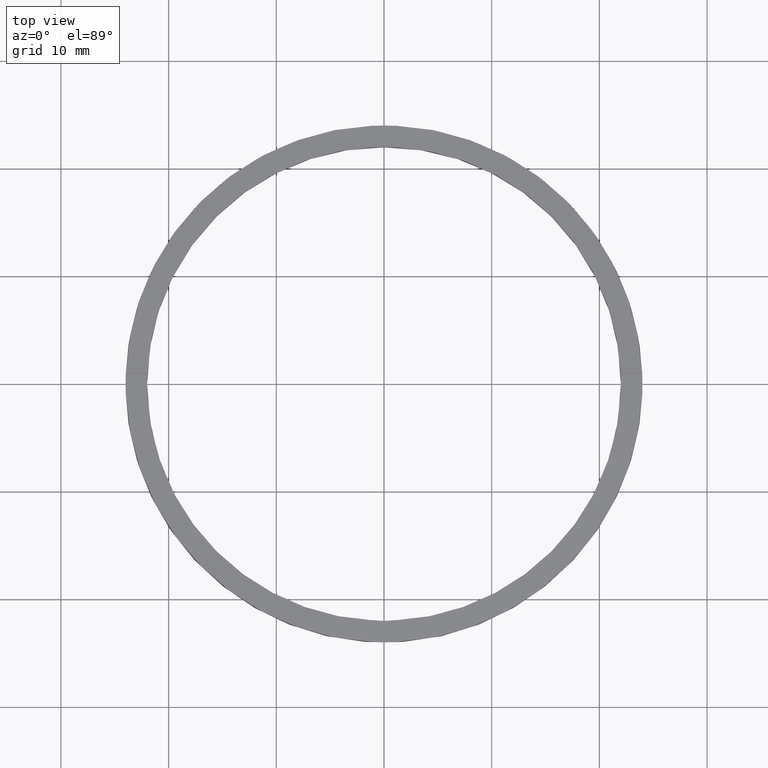
[diagram: clean part render]
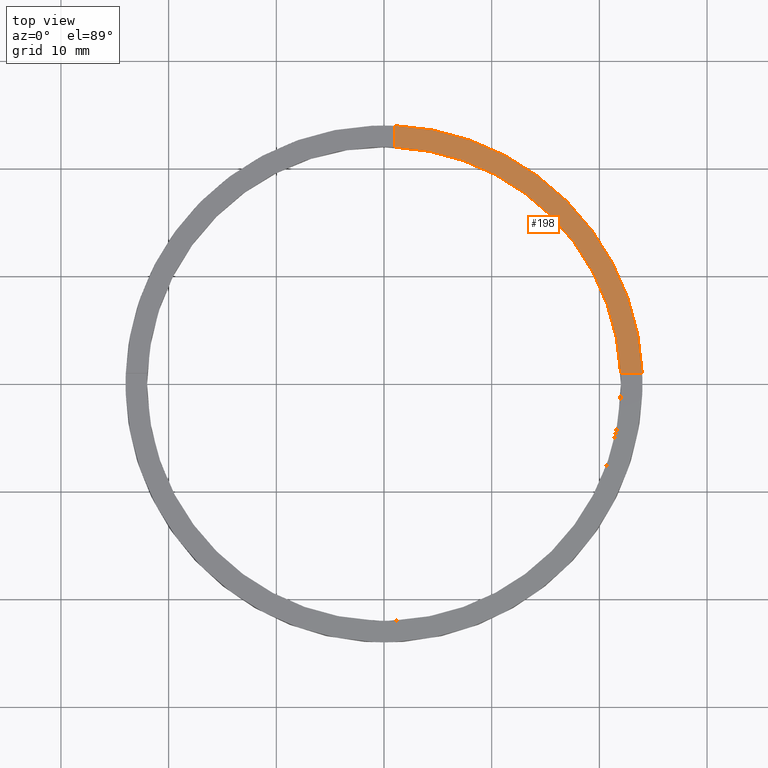
[diagram: same view with one face highlighted and labeled with its STEP entity id]
A machine part, top view. The second image highlights one B-rep face of the part: STEP entity #198.
In plain terms, the highlighted planar face has unit normal (0, 0, 1).
Its self-contained STEP definition (entity closure, byte-faithful):
#15 = VERTEX_POINT ( 'NONE', #573 ) ;
#46 = CARTESIAN_POINT ( 'NONE',  ( 0.9999999999999735767, 23.97915761656360090, 2.500000000000000000 ) ) ;
#55 = ORIENTED_EDGE ( 'NONE', *, *, #558, .F. ) ;
#63 = ORIENTED_EDGE ( 'NONE', *, *, #576, .F. ) ;
#72 = CARTESIAN_POINT ( 'NONE',  ( 0.000000000000000000, 0.000000000000000000, 2.500000000000000000 ) ) ;
#80 = LINE ( 'NONE', #149, #631 ) ;
#83 = FACE_OUTER_BOUND ( 'NONE', #476, .T. ) ;
#88 = CIRCLE ( 'NONE', #172, 24.00000000000000355 ) ;
#105 = CIRCLE ( 'NONE', #308, 22.00000000000000000 ) ;
#149 = CARTESIAN_POINT ( 'NONE',  ( 0.9999999999999740208, 14.00000000000000355, 2.500000000000000000 ) ) ;
#172 = AXIS2_PLACEMENT_3D ( 'NONE', #446, #178, #689 ) ;
#178 = DIRECTION ( 'NONE',  ( 0.000000000000000000, 0.000000000000000000, 1.000000000000000000 ) ) ;
#182 = ORIENTED_EDGE ( 'NONE', *, *, #415, .F. ) ;
#198 = ADVANCED_FACE ( 'NONE', ( #83 ), #680, .T. ) ;
#203 = VERTEX_POINT ( 'NONE', #391 ) ;
#234 = EDGE_CURVE ( 'NONE', #203, #759, #88, .T. ) ;
#258 = CARTESIAN_POINT ( 'NONE',  ( 21.97726097583591809, 0.9999999999998421263, 2.500000000000000000 ) ) ;
#268 = DIRECTION ( 'NONE',  ( -1.000000000000000000, -4.336808689942017120E-17, -0.000000000000000000 ) ) ;
#296 = DIRECTION ( 'NONE',  ( 1.000000000000000000, 0.000000000000000000, -0.000000000000000000 ) ) ;
#308 = AXIS2_PLACEMENT_3D ( 'NONE', #747, #409, #663 ) ;
#372 = LINE ( 'NONE', #674, #649 ) ;
#391 = CARTESIAN_POINT ( 'NONE',  ( 23.97915761656361155, 0.9999999999998423483, 2.500000000000000000 ) ) ;
#409 = DIRECTION ( 'NONE',  ( 0.000000000000000000, 0.000000000000000000, 1.000000000000000000 ) ) ;
#415 = EDGE_CURVE ( 'NONE', #15, #759, #80, .T. ) ;
#426 = AXIS2_PLACEMENT_3D ( 'NONE', #72, #670, #296 ) ;
#446 = CARTESIAN_POINT ( 'NONE',  ( 0.000000000000000000, 0.000000000000000000, 2.500000000000000000 ) ) ;
#476 = EDGE_LOOP ( 'NONE', ( #182, #63, #55, #528 ) ) ;
#528 = ORIENTED_EDGE ( 'NONE', *, *, #234, .T. ) ;
#558 = EDGE_CURVE ( 'NONE', #203, #693, #372, .T. ) ;
#573 = CARTESIAN_POINT ( 'NONE',  ( 0.9999999999999735767, 21.97726097583590743, 2.500000000000000000 ) ) ;
#576 = EDGE_CURVE ( 'NONE', #693, #15, #105, .T. ) ;
#631 = VECTOR ( 'NONE', #682, 1000.000000000000000 ) ;
#649 = VECTOR ( 'NONE', #268, 1000.000000000000000 ) ;
#663 = DIRECTION ( 'NONE',  ( 1.000000000000000000, 0.000000000000000000, 0.000000000000000000 ) ) ;
#670 = DIRECTION ( 'NONE',  ( 0.000000000000000000, 0.000000000000000000, 1.000000000000000000 ) ) ;
#674 = CARTESIAN_POINT ( 'NONE',  ( 13.99999999999999822, 0.9999999999998419042, 2.500000000000000000 ) ) ;
#680 = PLANE ( 'NONE',  #426 ) ;
#682 = DIRECTION ( 'NONE',  ( 0.000000000000000000, 1.000000000000000000, 0.000000000000000000 ) ) ;
#689 = DIRECTION ( 'NONE',  ( 1.000000000000000000, 0.000000000000000000, 0.000000000000000000 ) ) ;
#693 = VERTEX_POINT ( 'NONE', #258 ) ;
#747 = CARTESIAN_POINT ( 'NONE',  ( 0.000000000000000000, 0.000000000000000000, 2.500000000000000000 ) ) ;
#759 = VERTEX_POINT ( 'NONE', #46 ) ;